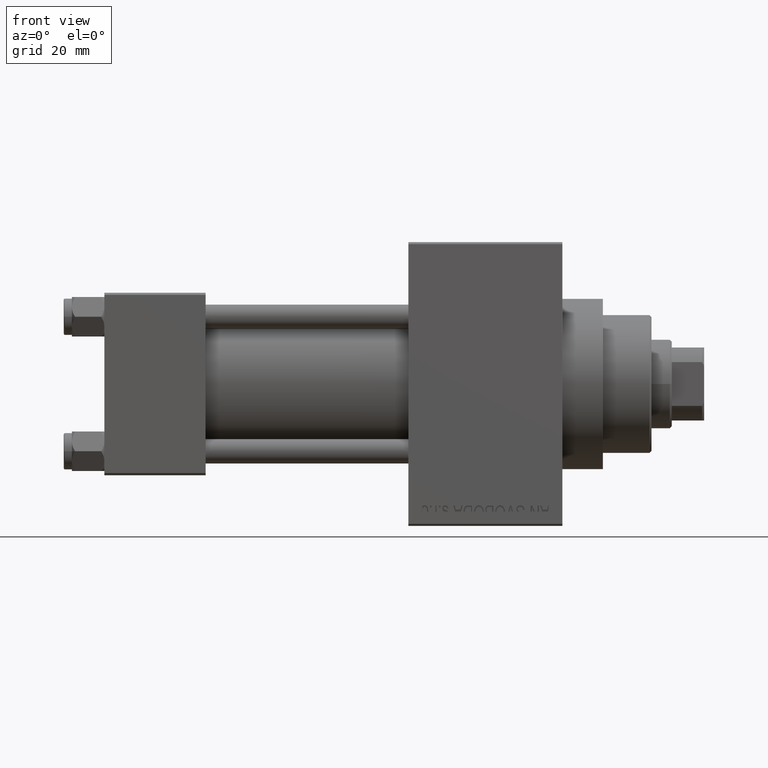
[diagram: clean part render]
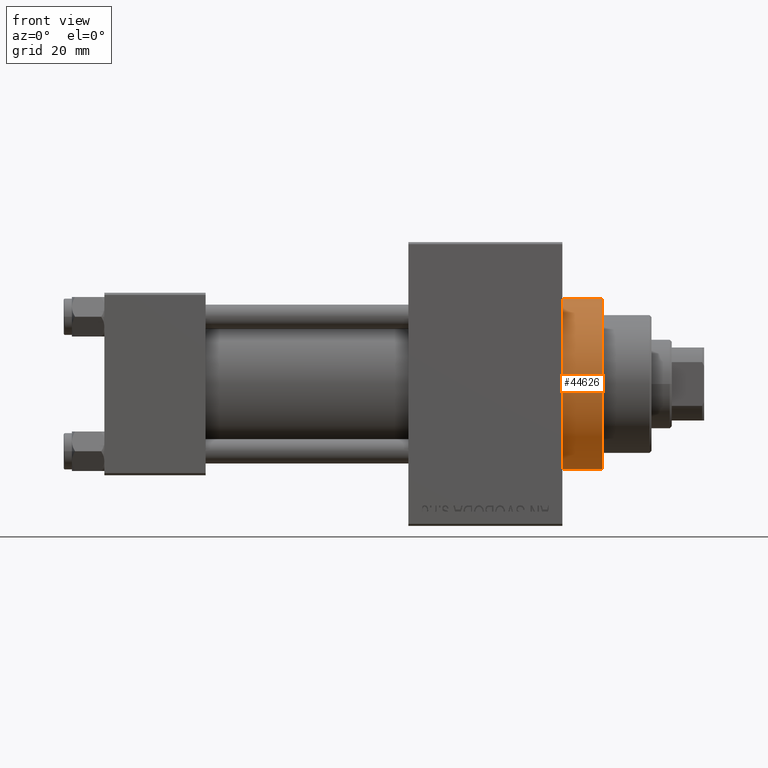
[diagram: same view with one face highlighted and labeled with its STEP entity id]
A machine part, front view. The second image highlights one B-rep face of the part: STEP entity #44626.
In plain terms, the highlighted cylindrical surface (partial cylindrical patch) has radius 21 mm, axis along (-1, -0, -0).
Its self-contained STEP definition (entity closure, byte-faithful):
#2117 = LINE ( 'NONE', #9822, #4546 ) ;
#4546 = VECTOR ( 'NONE', #28213, 1000.000000000000000 ) ;
#4996 = DIRECTION ( 'NONE',  ( 0.000000000000000000, 0.000000000000000000, -1.000000000000000000 ) ) ;
#6415 = ORIENTED_EDGE ( 'NONE', *, *, #12831, .F. ) ;
#7368 = AXIS2_PLACEMENT_3D ( 'NONE', #23873, #39048, #4996 ) ;
#7644 = CYLINDRICAL_SURFACE ( 'NONE', #38598, 21.00000000000000000 ) ;
#9822 = CARTESIAN_POINT ( 'NONE',  ( 123.0000000000000142, 2.571758278209441661E-15, -21.00000000000000000 ) ) ;
#9863 = DIRECTION ( 'NONE',  ( -1.000000000000000000, -0.000000000000000000, -0.000000000000000000 ) ) ;
#12831 = EDGE_CURVE ( 'NONE', #46806, #39853, #39522, .T. ) ;
#15813 = VERTEX_POINT ( 'NONE', #32941 ) ;
#16323 = CARTESIAN_POINT ( 'NONE',  ( 123.0000000000000142, 0.000000000000000000, 0.000000000000000000 ) ) ;
#19797 = EDGE_CURVE ( 'NONE', #39853, #36402, #2117, .T. ) ;
#21780 = CARTESIAN_POINT ( 'NONE',  ( 113.0000000000000142, 2.571758278209441661E-15, -21.00000000000000000 ) ) ;
#22545 = DIRECTION ( 'NONE',  ( -1.000000000000000000, -0.000000000000000000, -0.000000000000000000 ) ) ;
#22627 = CARTESIAN_POINT ( 'NONE',  ( 123.0000000000000142, 0.000000000000000000, 21.00000000000000000 ) ) ;
#23873 = CARTESIAN_POINT ( 'NONE',  ( 113.0000000000000142, 0.000000000000000000, 0.000000000000000000 ) ) ;
#24352 = ORIENTED_EDGE ( 'NONE', *, *, #37106, .T. ) ;
#25387 = EDGE_CURVE ( 'NONE', #46806, #15813, #36917, .T. ) ;
#28213 = DIRECTION ( 'NONE',  ( -1.000000000000000000, -0.000000000000000000, -0.000000000000000000 ) ) ;
#28743 = CARTESIAN_POINT ( 'NONE',  ( 123.0000000000000142, 0.000000000000000000, 21.00000000000000000 ) ) ;
#30505 = CARTESIAN_POINT ( 'NONE',  ( 123.0000000000000142, 0.000000000000000000, 0.000000000000000000 ) ) ;
#31495 = DIRECTION ( 'NONE',  ( 0.000000000000000000, 0.000000000000000000, -1.000000000000000000 ) ) ;
#31719 = VECTOR ( 'NONE', #9863, 1000.000000000000000 ) ;
#32941 = CARTESIAN_POINT ( 'NONE',  ( 113.0000000000000142, 0.000000000000000000, 21.00000000000000000 ) ) ;
#33741 = DIRECTION ( 'NONE',  ( 0.000000000000000000, 0.000000000000000000, 1.000000000000000000 ) ) ;
#36402 = VERTEX_POINT ( 'NONE', #21780 ) ;
#36917 = LINE ( 'NONE', #28743, #31719 ) ;
#37106 = EDGE_CURVE ( 'NONE', #15813, #36402, #46272, .T. ) ;
#37121 = AXIS2_PLACEMENT_3D ( 'NONE', #16323, #46186, #31495 ) ;
#37379 = EDGE_LOOP ( 'NONE', ( #42438, #6415, #39034, #24352 ) ) ;
#38598 = AXIS2_PLACEMENT_3D ( 'NONE', #30505, #22545, #33741 ) ;
#39034 = ORIENTED_EDGE ( 'NONE', *, *, #25387, .T. ) ;
#39048 = DIRECTION ( 'NONE',  ( 1.000000000000000000, 0.000000000000000000, 0.000000000000000000 ) ) ;
#39522 = CIRCLE ( 'NONE', #37121, 21.00000000000000000 ) ;
#39853 = VERTEX_POINT ( 'NONE', #41778 ) ;
#41778 = CARTESIAN_POINT ( 'NONE',  ( 123.0000000000000142, 2.571758278209441661E-15, -21.00000000000000000 ) ) ;
#42438 = ORIENTED_EDGE ( 'NONE', *, *, #19797, .F. ) ;
#44626 = ADVANCED_FACE ( 'NONE', ( #45449 ), #7644, .T. ) ;
#45449 = FACE_OUTER_BOUND ( 'NONE', #37379, .T. ) ;
#46186 = DIRECTION ( 'NONE',  ( 1.000000000000000000, 0.000000000000000000, 0.000000000000000000 ) ) ;
#46272 = CIRCLE ( 'NONE', #7368, 21.00000000000000000 ) ;
#46806 = VERTEX_POINT ( 'NONE', #22627 ) ;